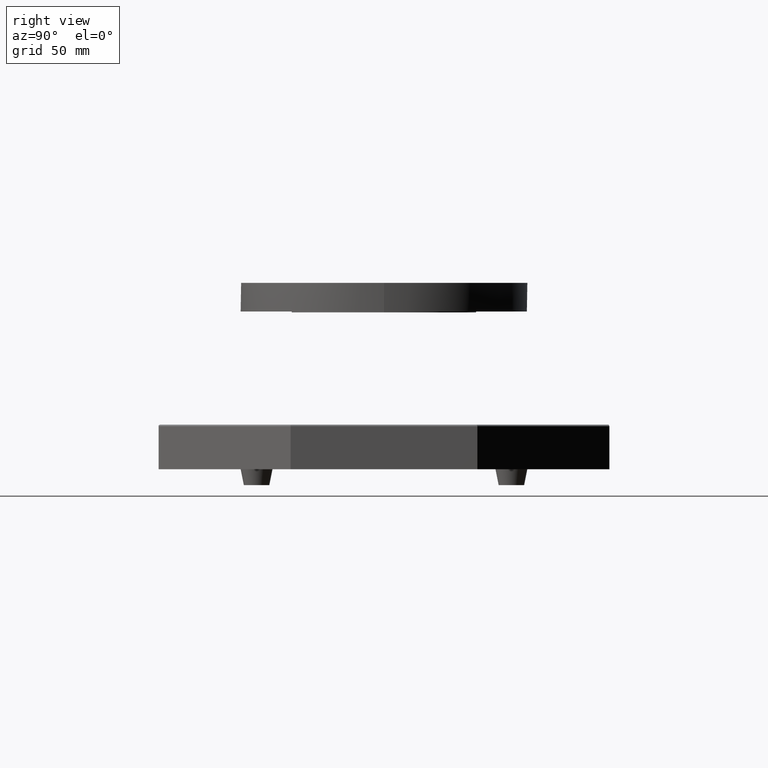
[diagram: clean part render]
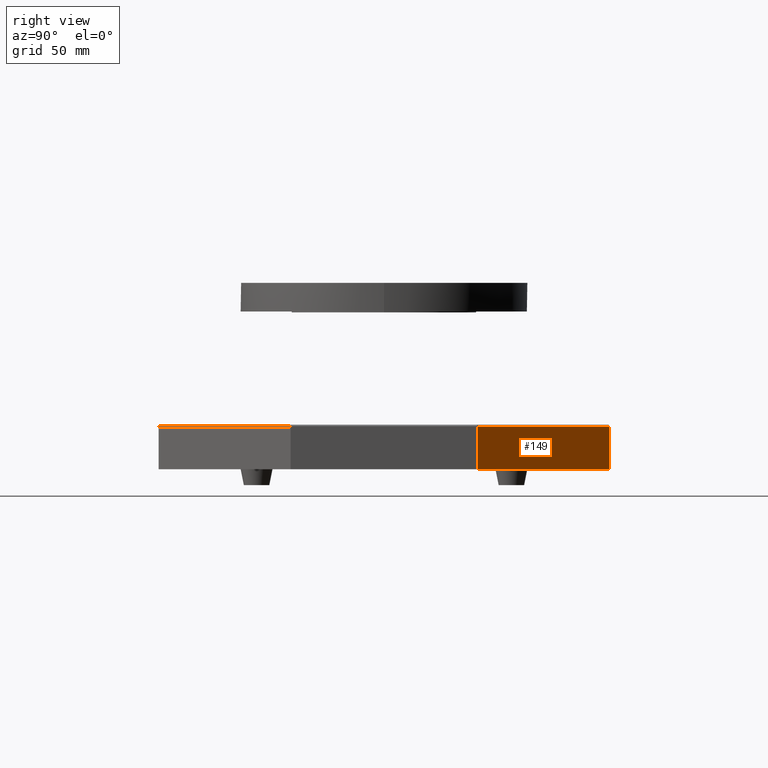
[diagram: same view with one face highlighted and labeled with its STEP entity id]
A machine part, right view. The second image highlights one B-rep face of the part: STEP entity #149.
In plain terms, the highlighted planar face has unit normal (0.7071, 0.7071, 0).
Its self-contained STEP definition (entity closure, byte-faithful):
#149=ADVANCED_FACE('',(#510),#4823,.T.);
#510=FACE_OUTER_BOUND('',#871,.T.);
#871=EDGE_LOOP('',(#1759,#1760,#1761,#1762));
#1759=ORIENTED_EDGE('',*,*,#2861,.F.);
#1760=ORIENTED_EDGE('',*,*,#2853,.T.);
#1761=ORIENTED_EDGE('',*,*,#2862,.T.);
#1762=ORIENTED_EDGE('',*,*,#2877,.F.);
#2853=EDGE_CURVE('',#4303,#4302,#3568,.T.);
#2861=EDGE_CURVE('',#4303,#4319,#3576,.T.);
#2862=EDGE_CURVE('',#4302,#4320,#3577,.T.);
#2877=EDGE_CURVE('',#4319,#4320,#3955,.T.);
#3568=B_SPLINE_CURVE_WITH_KNOTS('',1,(#9900,#9901),.UNSPECIFIED.,.F.,.F.,
(2,2),(1406.66925781903,1523.89169597062),.UNSPECIFIED.);
#3576=B_SPLINE_CURVE_WITH_KNOTS('',1,(#9916,#9917),.UNSPECIFIED.,.F.,.F.,
(2,2),(0.,27.),.UNSPECIFIED.);
#3577=B_SPLINE_CURVE_WITH_KNOTS('',1,(#9918,#9919),.UNSPECIFIED.,.F.,.F.,
(2,2),(0.,27.),.UNSPECIFIED.);
#3955=(
BOUNDED_CURVE()
B_SPLINE_CURVE(3,(#9972,#9973,#9974,#9975),.UNSPECIFIED.,.F.,.F.)
B_SPLINE_CURVE_WITH_KNOTS((4,4),(-1.5560469579512E-15,117.222438151586),
 .UNSPECIFIED.)
CURVE()
GEOMETRIC_REPRESENTATION_ITEM()
RATIONAL_B_SPLINE_CURVE((1.,1.,1.,1.))
REPRESENTATION_ITEM('')
);
#4302=VERTEX_POINT('',#9553);
#4303=VERTEX_POINT('',#9554);
#4319=VERTEX_POINT('',#9570);
#4320=VERTEX_POINT('',#9571);
#4823=PLANE('',#5008);
#5008=AXIS2_PLACEMENT_3D('',#8267,#5178,$);
#5178=DIRECTION('',(0.707106781186548,0.707106781186547,0.));
#8267=CARTESIAN_POINT('',(141.5,58.6112190757929,0.));
#9553=CARTESIAN_POINT('',(58.611219075793,141.5,0.));
#9554=CARTESIAN_POINT('',(141.5,58.6112190757929,0.));
#9570=CARTESIAN_POINT('',(141.5,58.6112190757929,27.));
#9571=CARTESIAN_POINT('',(58.611219075793,141.5,27.));
#9900=CARTESIAN_POINT('',(141.5,58.6112190757929,0.));
#9901=CARTESIAN_POINT('',(58.611219075793,141.5,0.));
#9916=CARTESIAN_POINT('',(141.5,58.6112190757929,0.));
#9917=CARTESIAN_POINT('',(141.5,58.6112190757929,27.));
#9918=CARTESIAN_POINT('',(58.611219075793,141.5,0.));
#9919=CARTESIAN_POINT('',(58.611219075793,141.5,27.));
#9972=CARTESIAN_POINT('',(141.5,58.6112190757929,27.));
#9973=CARTESIAN_POINT('',(113.870406358598,86.2408127171953,27.));
#9974=CARTESIAN_POINT('',(86.2408127171953,113.870406358598,27.));
#9975=CARTESIAN_POINT('',(58.611219075793,141.5,27.));